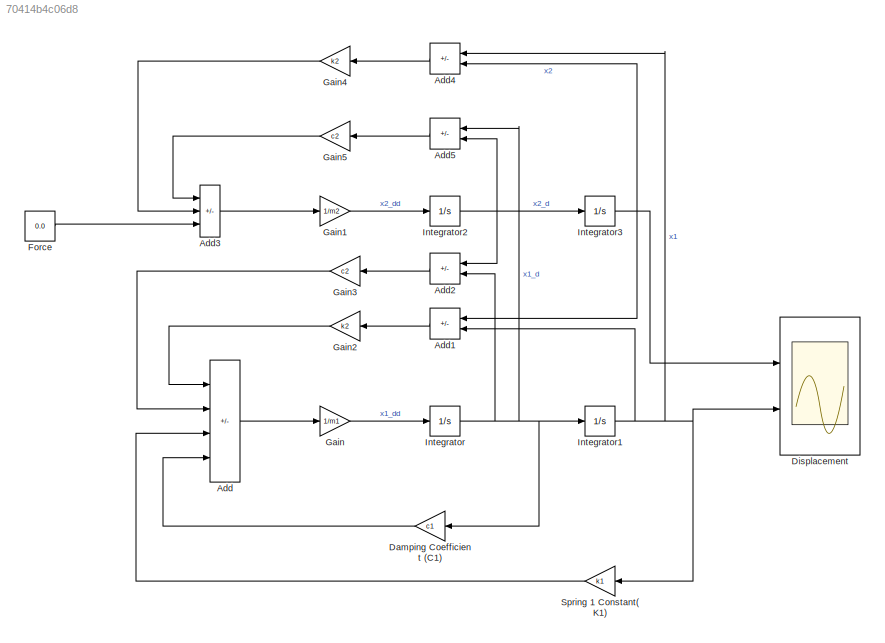
MODEL slx_70414b4c06d8
KIND model
CONFIG AbsTol = auto
CONFIG EnableMultiTasking = off
CONFIG FixedStep = auto
CONFIG MaxStep = auto
CONFIG MinStep = auto
CONFIG RelTol = 1e-3
CONFIG SampleTimeConstraint = Unconstrained
CONFIG SolverName = VariableStepAuto
CONFIG StartTime = 0.0
CONFIG StopTime = 40
BLOCK [Sum] Add
  IconShape = rectangular
  Inputs = ++--
  Ports = [4, 1]
BLOCK [Sum] Add1
  IconShape = rectangular
  Inputs = +-
  Ports = [2, 1]
BLOCK [Sum] Add2
  IconShape = rectangular
  Inputs = +-
  Ports = [2, 1]
BLOCK [Sum] Add3
  IconShape = rectangular
  Inputs = --+
  Ports = [3, 1]
BLOCK [Sum] Add4
  IconShape = rectangular
  Inputs = -+
  Ports = [2, 1]
BLOCK [Sum] Add5
  IconShape = rectangular
  Inputs = -+
  Ports = [2, 1]
BLOCK [Gain] Damping Coefficient (C1)
  Gain = c1
BLOCK [Scope] Displacement
  Floating = off
  NumInputPorts = 2
  Ports = [2]
  ScopeSpecificationString = Simulink.scopes.TimeScopeBlockCfg('CurrentConfiguration', extmgr.ConfigurationSet(extmgr.Configuration('Core','General UI',true,'FigureColor',[0.501960784313725 0.501960784313725 0.501960784313725]),extmgr.Configuration('Core','Source UI',true),extmgr.Configuration('Sources','WiredSimulink',true,'SampleTime','0.25'),extmgr.Configuration('Visuals','Time Domain',true,'SerializedDisplays',{struct('Mi...<+1790ch>
BLOCK [Constant] Force
  Value = 0.0
BLOCK [Gain] Gain
  Gain = 1/m1
BLOCK [Gain] Gain1
  Gain = 1/m2
BLOCK [Gain] Gain2
  Gain = k2
BLOCK [Gain] Gain3
  Gain = c2
BLOCK [Gain] Gain4
  Gain = k2
BLOCK [Gain] Gain5
  Gain = c2
BLOCK [Integrator] Integrator
  Ports = [1, 1]
BLOCK [Integrator] Integrator1
  InitialCondition = 2
  Ports = [1, 1]
BLOCK [Integrator] Integrator2
  Ports = [1, 1]
BLOCK [Integrator] Integrator3
  InitialCondition = 2
  Ports = [1, 1]
BLOCK [Gain] Spring 1 Constant(K1)
  Gain = k1
LINE Add1:1 -> Gain2:1
LINE Add2:1 -> Gain3:1
LINE Add3:1 -> Gain1:1
LINE Add4:1 -> Gain4:1
LINE Add5:1 -> Gain5:1
LINE Add:1 -> Gain:1
LINE Damping Coefficient (C1):1 -> Add:4
LINE Force:1 -> Add3:3
LINE Gain1:1 -> Integrator2:1
LINE Gain2:1 -> Add:1
LINE Gain3:1 -> Add:2
LINE Gain4:1 -> Add3:2
LINE Gain5:1 -> Add3:1
LINE Gain:1 -> Integrator:1
NET Integrator1:1 -> Add1:2, Add4:1, Displacement:2, Spring 1 Constant(K1):1
NET Integrator2:1 -> Add2:1, Add5:2, Integrator3:1
NET Integrator3:1 -> Add1:1, Add4:2, Displacement:1
NET Integrator:1 -> Add2:2, Add5:1, Damping Coefficient (C1):1, Integrator1:1
LINE Spring 1 Constant(K1):1 -> Add:3
note: NET lines group one-source signal fan-out (src -> all destinations, sorted); 1:1 wires keep LINE
